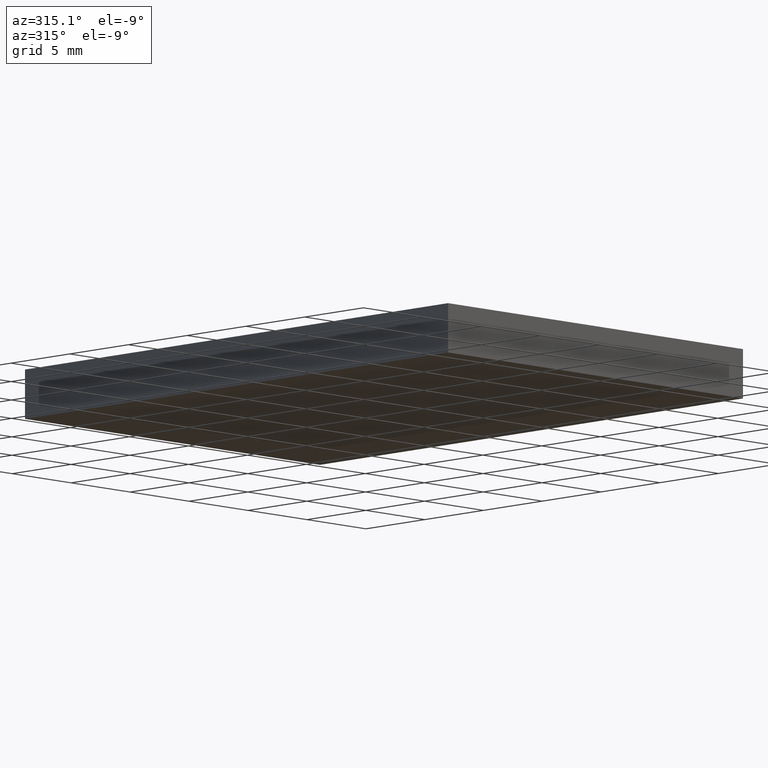
[diagram: clean part render]
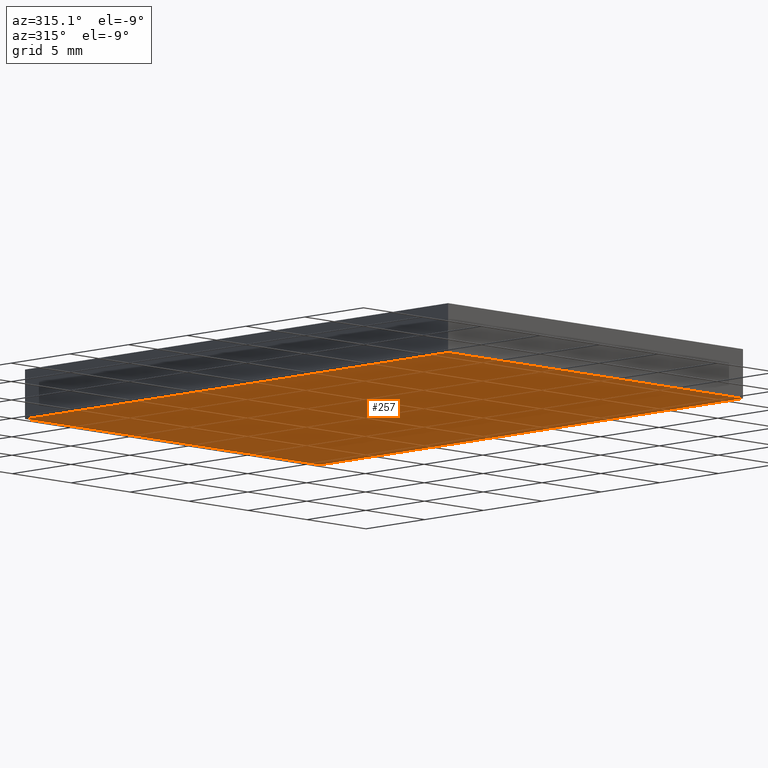
[diagram: same view with one face highlighted and labeled with its STEP entity id]
A machine part, auxiliary view. The second image highlights one B-rep face of the part: STEP entity #257.
In plain terms, the highlighted planar face has unit normal (-0, 0, 1).
Its self-contained STEP definition (entity closure, byte-faithful):
#9 = ORIENTED_EDGE ( 'NONE', *, *, #183, .F. ) ;
#19 = DIRECTION ( 'NONE',  ( 1.000000000000000000, 0.0000000000000000000, 0.0000000000000000000 ) ) ;
#37 = LINE ( 'NONE', #46, #116 ) ;
#38 = ORIENTED_EDGE ( 'NONE', *, *, #217, .F. ) ;
#40 = DIRECTION ( 'NONE',  ( -1.000000000000000000, -0.0000000000000000000, -0.0000000000000000000 ) ) ;
#43 = CARTESIAN_POINT ( 'NONE',  ( -6.351626016260158100, -28.47967479674797200, 0.0000000000000000000 ) ) ;
#46 = CARTESIAN_POINT ( 'NONE',  ( -6.351626016260162500, 7.520325203252024700, 0.0000000000000000000 ) ) ;
#58 = FACE_OUTER_BOUND ( 'NONE', #164, .T. ) ;
#64 = CARTESIAN_POINT ( 'NONE',  ( 18.64837398373983700, 7.520325203252024700, 0.0000000000000000000 ) ) ;
#70 = CARTESIAN_POINT ( 'NONE',  ( 0.0000000000000000000, 0.0000000000000000000, 0.0000000000000000000 ) ) ;
#73 = ORIENTED_EDGE ( 'NONE', *, *, #154, .F. ) ;
#90 = VECTOR ( 'NONE', #288, 1000.000000000000000 ) ;
#99 = VECTOR ( 'NONE', #40, 1000.000000000000000 ) ;
#116 = VECTOR ( 'NONE', #124, 1000.000000000000000 ) ;
#118 = PLANE ( 'NONE',  #253 ) ;
#122 = VERTEX_POINT ( 'NONE', #165 ) ;
#124 = DIRECTION ( 'NONE',  ( 1.204669080539449300E-016, -1.000000000000000000, 0.0000000000000000000 ) ) ;
#126 = LINE ( 'NONE', #64, #90 ) ;
#150 = DIRECTION ( 'NONE',  ( 1.000000000000000000, 0.0000000000000000000, 0.0000000000000000000 ) ) ;
#154 = EDGE_CURVE ( 'NONE', #122, #277, #126, .T. ) ;
#164 = EDGE_LOOP ( 'NONE', ( #9, #38, #73, #187 ) ) ;
#165 = CARTESIAN_POINT ( 'NONE',  ( 18.64837398373984800, -28.47967479674797200, 0.0000000000000000000 ) ) ;
#183 = EDGE_CURVE ( 'NONE', #224, #264, #37, .T. ) ;
#187 = ORIENTED_EDGE ( 'NONE', *, *, #291, .F. ) ;
#198 = CARTESIAN_POINT ( 'NONE',  ( -6.351626016260162500, 7.520325203252024700, 0.0000000000000000000 ) ) ;
#217 = EDGE_CURVE ( 'NONE', #277, #224, #266, .T. ) ;
#224 = VERTEX_POINT ( 'NONE', #198 ) ;
#239 = LINE ( 'NONE', #306, #289 ) ;
#246 = DIRECTION ( 'NONE',  ( -0.0000000000000000000, 0.0000000000000000000, 1.000000000000000000 ) ) ;
#253 = AXIS2_PLACEMENT_3D ( 'NONE', #70, #246, #19 ) ;
#257 = ADVANCED_FACE ( 'NONE', ( #58 ), #118, .F. ) ;
#264 = VERTEX_POINT ( 'NONE', #43 ) ;
#266 = LINE ( 'NONE', #290, #99 ) ;
#277 = VERTEX_POINT ( 'NONE', #312 ) ;
#288 = DIRECTION ( 'NONE',  ( -2.891205793294678800E-016, 1.000000000000000000, -0.0000000000000000000 ) ) ;
#289 = VECTOR ( 'NONE', #150, 1000.000000000000000 ) ;
#290 = CARTESIAN_POINT ( 'NONE',  ( -6.351626016260162500, 7.520325203252024700, 0.0000000000000000000 ) ) ;
#291 = EDGE_CURVE ( 'NONE', #264, #122, #239, .T. ) ;
#306 = CARTESIAN_POINT ( 'NONE',  ( -6.351626016260158100, -28.47967479674797200, 0.0000000000000000000 ) ) ;
#312 = CARTESIAN_POINT ( 'NONE',  ( 18.64837398373983700, 7.520325203252024700, 0.0000000000000000000 ) ) ;